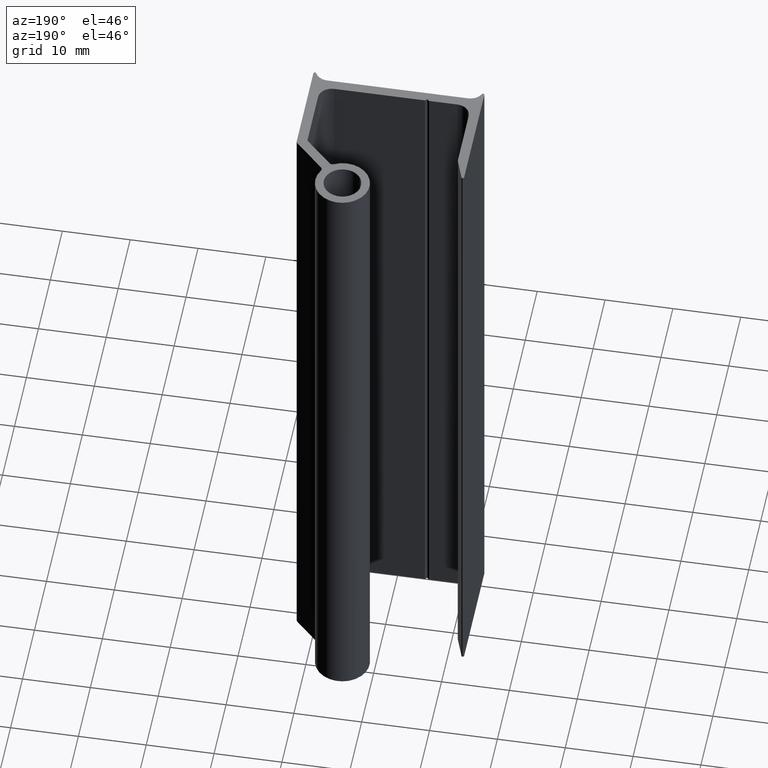
[diagram: clean part render]
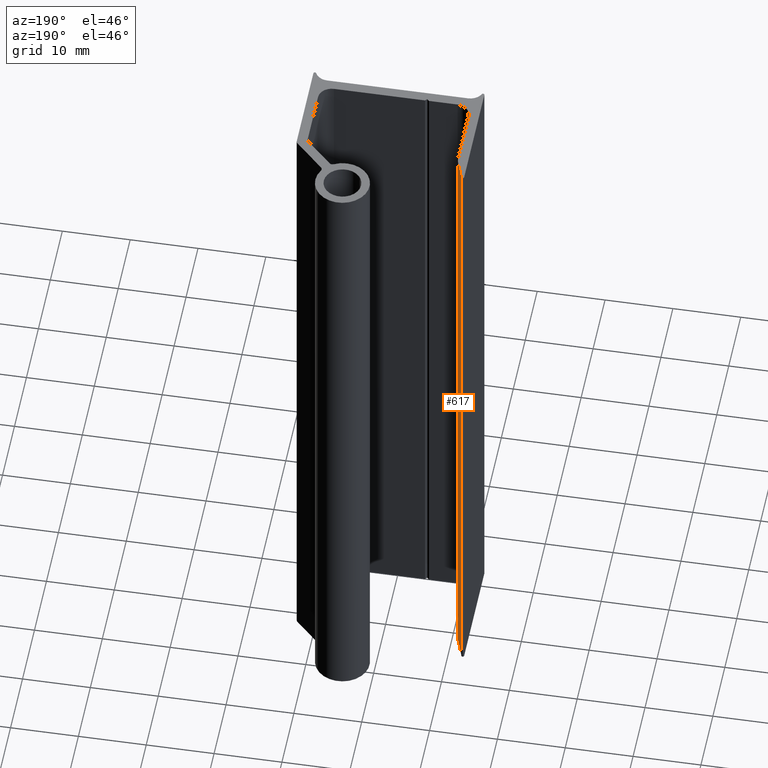
[diagram: same view with one face highlighted and labeled with its STEP entity id]
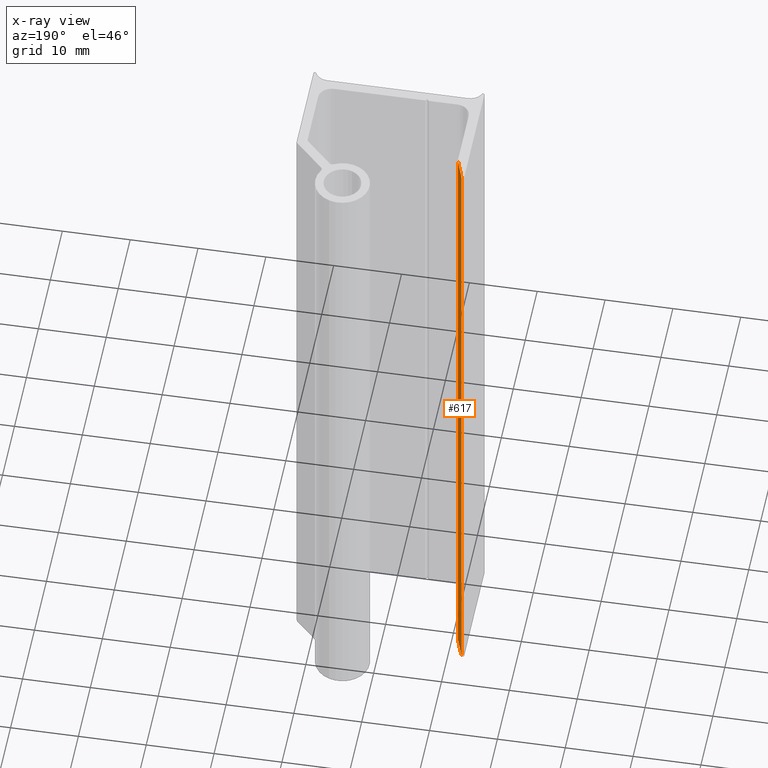
[diagram: x-ray of the same camera — body ghosted, the highlighted face saturated]
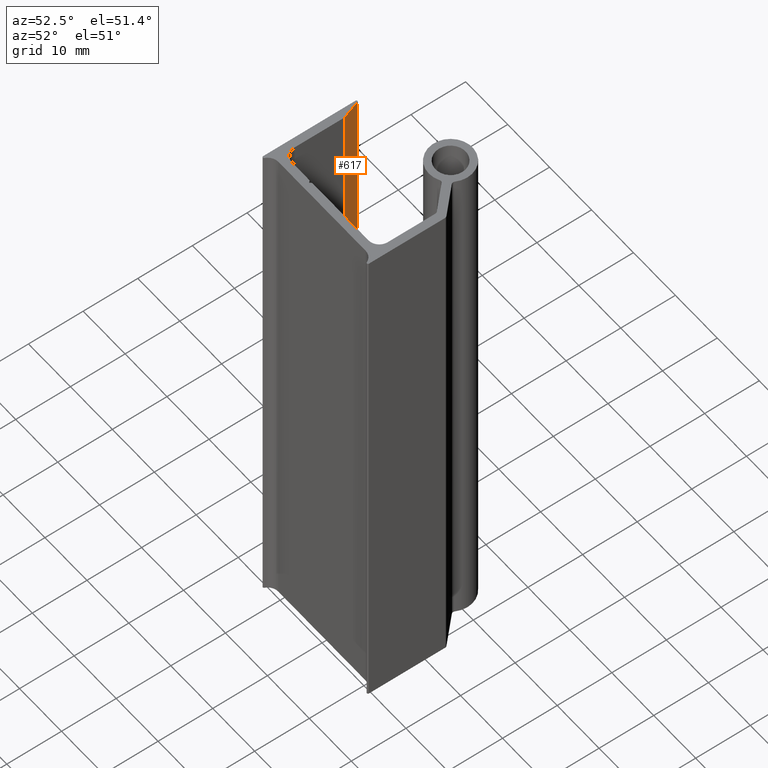
[diagram: same view with one face highlighted and labeled with its STEP entity id]
A machine part, auxiliary view. The second image highlights one B-rep face of the part: STEP entity #617.
The next image is the same camera in x-ray: the body ghosted, the highlighted face saturated — about 0% of this face is hidden behind the body in this view.
A second angle (auxiliary view) of the same face is appended — the face is thin or edge-on in the first view.
In plain terms, the highlighted planar face has unit normal (0.9456, 0.3252, 0).
Its self-contained STEP definition (entity closure, byte-faithful):
#559=CARTESIAN_POINT('',(-11.127175402978651,12.711465200364728,0.0));
#560=VERTEX_POINT('',#559);
#568=CARTESIAN_POINT('',(-11.127175402978651,12.711465200364728,100.0));
#569=VERTEX_POINT('',#568);
#570=CARTESIAN_POINT('',(-11.127175402978651,12.711465200364728,0.0));
#571=DIRECTION('',(0.0,0.0,1.0));
#572=VECTOR('',#571,100.0);
#573=LINE('',#570,#572);
#574=EDGE_CURVE('',#560,#569,#573,.T.);
#587=CARTESIAN_POINT('',(-11.127175402978651,12.711465200364728,0.0));
#588=DIRECTION('',(0.945649194008062,0.325188563562592,0.0));
#589=DIRECTION('',(-0.325188563562592,0.945649194008062,0.0));
#590=AXIS2_PLACEMENT_3D('',#587,#588,#589);
#591=PLANE('',#590);
#592=CARTESIAN_POINT('',(-12.207581722814439,15.853289606367866,0.0));
#593=VERTEX_POINT('',#592);
#594=CARTESIAN_POINT('',(-11.127175402978651,12.711465200364728,0.0));
#595=DIRECTION('',(-0.325188563562592,0.945649194008062,0.0));
#596=VECTOR('',#595,3.322399496463057);
#597=LINE('',#594,#596);
#598=EDGE_CURVE('',#560,#593,#597,.T.);
#599=ORIENTED_EDGE('',*,*,#598,.T.);
#600=CARTESIAN_POINT('',(-12.207581722814439,15.853289606367866,100.0));
#601=VERTEX_POINT('',#600);
#602=CARTESIAN_POINT('',(-12.207581722814439,15.853289606367866,0.0));
#603=DIRECTION('',(0.0,0.0,1.0));
#604=VECTOR('',#603,100.0);
#605=LINE('',#602,#604);
#606=EDGE_CURVE('',#593,#601,#605,.T.);
#607=ORIENTED_EDGE('',*,*,#606,.T.);
#608=CARTESIAN_POINT('',(-11.127175402978651,12.711465200364728,100.0));
#609=DIRECTION('',(-0.325188563562592,0.945649194008062,0.0));
#610=VECTOR('',#609,3.322399496463057);
#611=LINE('',#608,#610);
#612=EDGE_CURVE('',#569,#601,#611,.T.);
#613=ORIENTED_EDGE('',*,*,#612,.F.);
#614=ORIENTED_EDGE('',*,*,#574,.F.);
#615=EDGE_LOOP('',(#599,#607,#613,#614));
#616=FACE_OUTER_BOUND('',#615,.T.);
#617=ADVANCED_FACE('',(#616),#591,.T.);